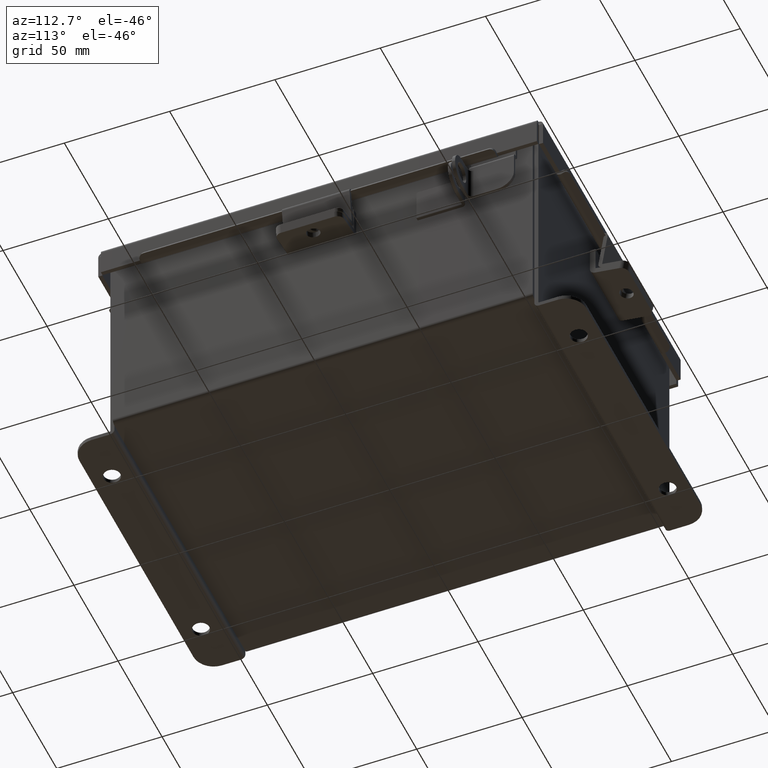
[diagram: clean part render]
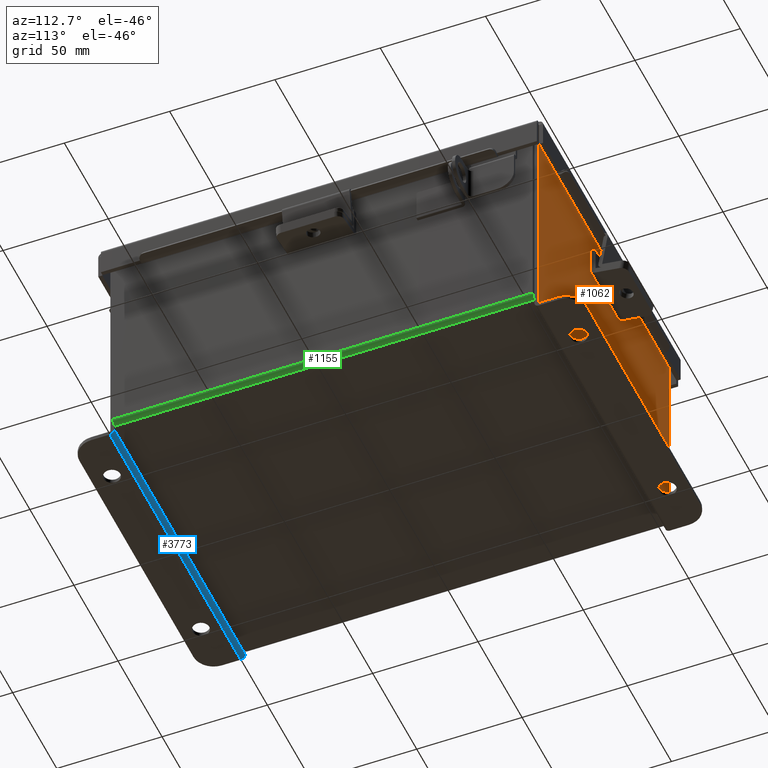
[diagram: same view with three faces highlighted in distinct colors, each labeled with its STEP entity id]
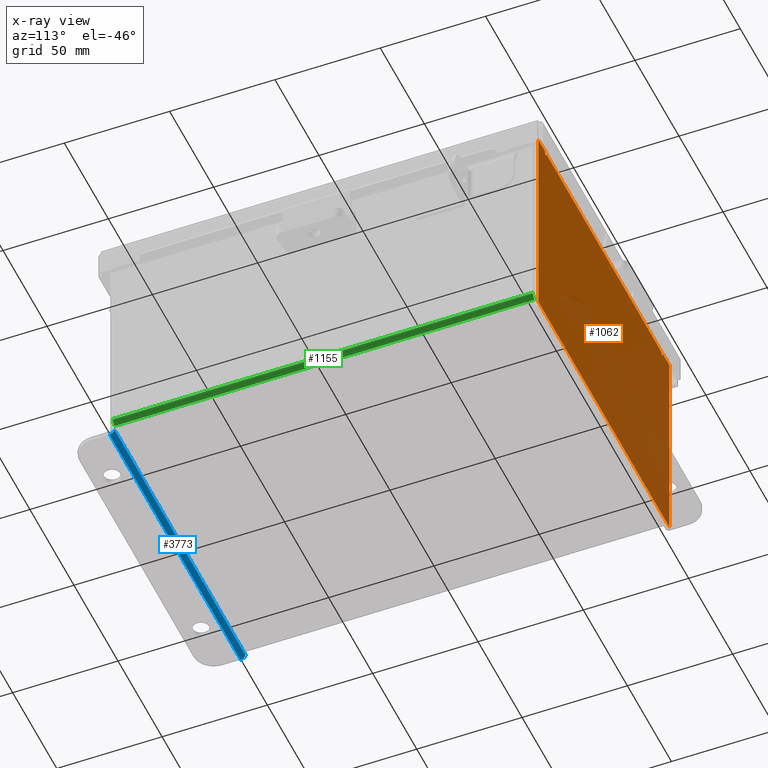
[diagram: x-ray of the same camera — body ghosted, the three highlighted faces saturated]
A machine part, auxiliary view with three faces highlighted in distinct colors.
The next image is the same camera in x-ray (body ghosted, the three faces saturated) — at least one of them is partly hidden behind the body in this view.
Their STEP definitions:

[orange] entity #1062 — the highlighted planar face has unit normal (0, -1, 0).
#41 = CARTESIAN_POINT ( 'NONE',  ( 2.925299999999999100, 0.0000000000000000000, -2.099299999999999100 ) ) ;
#64 = CARTESIAN_POINT ( 'NONE',  ( -2.600975000000000900, 0.0000000000000000000, 1.874950000000000100 ) ) ;
#344 = VECTOR ( 'NONE', #9688, 39.37007874015748100 ) ;
#378 = AXIS2_PLACEMENT_3D ( 'NONE', #64, #8385, #1260 ) ;
#532 = VECTOR ( 'NONE', #10371, 39.37007874015748100 ) ;
#679 = ORIENTED_EDGE ( 'NONE', *, *, #1486, .T. ) ;
#1062 = ADVANCED_FACE ( 'NONE', ( #1191 ), #8965, .F. ) ;
#1116 = CARTESIAN_POINT ( 'NONE',  ( -2.582300000000000900, 1.092739197465705300E-015, 1.912300000000000300 ) ) ;
#1191 = FACE_OUTER_BOUND ( 'NONE', #11539, .T. ) ;
#1260 = DIRECTION ( 'NONE',  ( 0.0000000000000000000, 0.0000000000000000000, -1.000000000000000000 ) ) ;
#1319 = EDGE_CURVE ( 'NONE', #3755, #7990, #4164, .T. ) ;
#1486 = EDGE_CURVE ( 'NONE', #1527, #3192, #14540, .T. ) ;
#1527 = VERTEX_POINT ( 'NONE', #7560 ) ;
#1622 = EDGE_CURVE ( 'NONE', #10123, #14582, #10312, .T. ) ;
#1634 = VERTEX_POINT ( 'NONE', #4939 ) ;
#1823 = CIRCLE ( 'NONE', #2162, 0.01867500000000003900 ) ;
#2162 = AXIS2_PLACEMENT_3D ( 'NONE', #6652, #14937, #7858 ) ;
#2306 = CARTESIAN_POINT ( 'NONE',  ( -2.619650000000000900, 0.0000000000000000000, 1.874950000000000100 ) ) ;
#2425 = LINE ( 'NONE', #12638, #8379 ) ;
#2628 = ORIENTED_EDGE ( 'NONE', *, *, #3528, .F. ) ;
#2701 = ORIENTED_EDGE ( 'NONE', *, *, #13442, .F. ) ;
#2752 = ORIENTED_EDGE ( 'NONE', *, *, #15109, .T. ) ;
#3192 = VERTEX_POINT ( 'NONE', #7742 ) ;
#3212 = VECTOR ( 'NONE', #6079, 39.37007874015748100 ) ;
#3295 = EDGE_CURVE ( 'NONE', #1634, #14582, #2425, .T. ) ;
#3528 = EDGE_CURVE ( 'NONE', #3755, #6779, #5428, .T. ) ;
#3601 = CARTESIAN_POINT ( 'NONE',  ( -2.582300000000000900, 0.0000000000000000000, 0.0000000000000000000 ) ) ;
#3755 = VERTEX_POINT ( 'NONE', #10009 ) ;
#3889 = LINE ( 'NONE', #8489, #344 ) ;
#4164 = LINE ( 'NONE', #1116, #6580 ) ;
#4190 = CARTESIAN_POINT ( 'NONE',  ( 0.0000000000000000000, 0.0000000000000000000, 0.0000000000000000000 ) ) ;
#4243 = DIRECTION ( 'NONE',  ( 0.0000000000000000000, -0.0000000000000000000, -1.000000000000000000 ) ) ;
#4421 = EDGE_CURVE ( 'NONE', #6779, #13889, #10407, .T. ) ;
#4939 = CARTESIAN_POINT ( 'NONE',  ( 2.925299999999999100, 0.0000000000000000000, 1.925300000000000900 ) ) ;
#5096 = VECTOR ( 'NONE', #6305, 39.37007874015748100 ) ;
#5337 = EDGE_CURVE ( 'NONE', #13889, #3192, #10208, .T. ) ;
#5428 = LINE ( 'NONE', #3601, #7827 ) ;
#5561 = DIRECTION ( 'NONE',  ( 0.0000000000000000000, 0.0000000000000000000, -1.000000000000000000 ) ) ;
#5580 = DIRECTION ( 'NONE',  ( 0.0000000000000000000, 0.0000000000000000000, 1.000000000000000000 ) ) ;
#5759 = ORIENTED_EDGE ( 'NONE', *, *, #15330, .T. ) ;
#5800 = EDGE_CURVE ( 'NONE', #9919, #13696, #7390, .T. ) ;
#6042 = ORIENTED_EDGE ( 'NONE', *, *, #3295, .T. ) ;
#6079 = DIRECTION ( 'NONE',  ( 1.000000000000000000, 8.208677865577646300E-017, -0.0000000000000000000 ) ) ;
#6163 = CARTESIAN_POINT ( 'NONE',  ( -2.582300000000000900, 0.0000000000000000000, 1.874950000000000100 ) ) ;
#6305 = DIRECTION ( 'NONE',  ( 1.000000000000000000, 0.0000000000000000000, 0.0000000000000000000 ) ) ;
#6580 = VECTOR ( 'NONE', #10637, 39.37007874015748100 ) ;
#6652 = CARTESIAN_POINT ( 'NONE',  ( 2.600974999999998700, 0.0000000000000000000, 1.874950000000000100 ) ) ;
#6777 = CARTESIAN_POINT ( 'NONE',  ( 2.619649999999999100, 0.0000000000000000000, 1.874950000000000100 ) ) ;
#6779 = VERTEX_POINT ( 'NONE', #6163 ) ;
#6851 = LINE ( 'NONE', #12713, #532 ) ;
#7128 = CARTESIAN_POINT ( 'NONE',  ( 2.619649999999999100, 0.0000000000000000000, 1.925300000000000900 ) ) ;
#7390 = LINE ( 'NONE', #8771, #12930 ) ;
#7560 = CARTESIAN_POINT ( 'NONE',  ( -2.925300000000001300, 0.0000000000000000000, 1.925300000000000900 ) ) ;
#7742 = CARTESIAN_POINT ( 'NONE',  ( -2.619650000000000900, 0.0000000000000000000, 1.925300000000000900 ) ) ;
#7827 = VECTOR ( 'NONE', #10791, 39.37007874015748100 ) ;
#7858 = DIRECTION ( 'NONE',  ( 0.0000000000000000000, 0.0000000000000000000, -1.000000000000000000 ) ) ;
#7990 = VERTEX_POINT ( 'NONE', #11921 ) ;
#8379 = VECTOR ( 'NONE', #5561, 39.37007874015748100 ) ;
#8385 = DIRECTION ( 'NONE',  ( -0.0000000000000000000, 1.000000000000000000, -0.0000000000000000000 ) ) ;
#8489 = CARTESIAN_POINT ( 'NONE',  ( -2.925300000000001300, 0.0000000000000000000, 1.925300000000000900 ) ) ;
#8585 = LINE ( 'NONE', #8911, #11744 ) ;
#8771 = CARTESIAN_POINT ( 'NONE',  ( 2.619649999999978700, 0.0000000000000000000, -2.841121913410833900E-014 ) ) ;
#8911 = CARTESIAN_POINT ( 'NONE',  ( 2.582299999999998700, 0.0000000000000000000, 0.0000000000000000000 ) ) ;
#8965 = PLANE ( 'NONE',  #9527 ) ;
#9527 = AXIS2_PLACEMENT_3D ( 'NONE', #4190, #11373, #4243 ) ;
#9688 = DIRECTION ( 'NONE',  ( 1.000000000000000000, 0.0000000000000000000, 0.0000000000000000000 ) ) ;
#9919 = VERTEX_POINT ( 'NONE', #7128 ) ;
#10009 = CARTESIAN_POINT ( 'NONE',  ( -2.582300000000000900, 1.092739197465705300E-015, 1.912300000000000300 ) ) ;
#10123 = VERTEX_POINT ( 'NONE', #12152 ) ;
#10208 = LINE ( 'NONE', #15093, #12216 ) ;
#10260 = ORIENTED_EDGE ( 'NONE', *, *, #1319, .T. ) ;
#10312 = LINE ( 'NONE', #14374, #3212 ) ;
#10371 = DIRECTION ( 'NONE',  ( -0.0000000000000000000, -0.0000000000000000000, 1.000000000000000000 ) ) ;
#10407 = CIRCLE ( 'NONE', #378, 0.01867500000000003900 ) ;
#10637 = DIRECTION ( 'NONE',  ( 1.000000000000000000, 0.0000000000000000000, 0.0000000000000000000 ) ) ;
#10791 = DIRECTION ( 'NONE',  ( 0.0000000000000000000, 0.0000000000000000000, -1.000000000000000000 ) ) ;
#11000 = EDGE_CURVE ( 'NONE', #13696, #15097, #1823, .T. ) ;
#11373 = DIRECTION ( 'NONE',  ( 0.0000000000000000000, -1.000000000000000000, 0.0000000000000000000 ) ) ;
#11413 = ORIENTED_EDGE ( 'NONE', *, *, #4421, .F. ) ;
#11539 = EDGE_LOOP ( 'NONE', ( #13576, #11413, #2628, #10260, #2701, #11940, #13409, #2752, #6042, #12199, #5759, #679 ) ) ;
#11744 = VECTOR ( 'NONE', #14804, 39.37007874015748100 ) ;
#11921 = CARTESIAN_POINT ( 'NONE',  ( 2.582299999999998700, 0.0000000000000000000, 1.912300000000000300 ) ) ;
#11940 = ORIENTED_EDGE ( 'NONE', *, *, #11000, .F. ) ;
#12152 = CARTESIAN_POINT ( 'NONE',  ( -2.925300000000000500, -5.463695987328526400E-016, -2.099299999999999100 ) ) ;
#12199 = ORIENTED_EDGE ( 'NONE', *, *, #1622, .F. ) ;
#12215 = CARTESIAN_POINT ( 'NONE',  ( -2.925300000000001300, 0.0000000000000000000, 1.925300000000000900 ) ) ;
#12216 = VECTOR ( 'NONE', #5580, 39.37007874015748100 ) ;
#12340 = DIRECTION ( 'NONE',  ( -1.085143195099989400E-014, 0.0000000000000000000, -1.000000000000000000 ) ) ;
#12638 = CARTESIAN_POINT ( 'NONE',  ( 2.925299999999999100, 0.0000000000000000000, 1.925300000000000900 ) ) ;
#12713 = CARTESIAN_POINT ( 'NONE',  ( -2.925300000000001300, 0.0000000000000000000, 1.925300000000000900 ) ) ;
#12930 = VECTOR ( 'NONE', #12340, 39.37007874015748100 ) ;
#13183 = CARTESIAN_POINT ( 'NONE',  ( 2.582299999999998700, 0.0000000000000000000, 1.874950000000000100 ) ) ;
#13409 = ORIENTED_EDGE ( 'NONE', *, *, #5800, .F. ) ;
#13442 = EDGE_CURVE ( 'NONE', #15097, #7990, #8585, .T. ) ;
#13576 = ORIENTED_EDGE ( 'NONE', *, *, #5337, .F. ) ;
#13696 = VERTEX_POINT ( 'NONE', #6777 ) ;
#13889 = VERTEX_POINT ( 'NONE', #2306 ) ;
#14374 = CARTESIAN_POINT ( 'NONE',  ( -2.925300000000001300, -5.463695987328526400E-016, -2.099299999999999100 ) ) ;
#14540 = LINE ( 'NONE', #12215, #5096 ) ;
#14582 = VERTEX_POINT ( 'NONE', #41 ) ;
#14804 = DIRECTION ( 'NONE',  ( 0.0000000000000000000, 0.0000000000000000000, 1.000000000000000000 ) ) ;
#14937 = DIRECTION ( 'NONE',  ( -0.0000000000000000000, 1.000000000000000000, -0.0000000000000000000 ) ) ;
#15093 = CARTESIAN_POINT ( 'NONE',  ( -2.619650000000000900, 0.0000000000000000000, 0.0000000000000000000 ) ) ;
#15097 = VERTEX_POINT ( 'NONE', #13183 ) ;
#15109 = EDGE_CURVE ( 'NONE', #9919, #1634, #3889, .T. ) ;
#15330 = EDGE_CURVE ( 'NONE', #10123, #1527, #6851, .T. ) ;

[blue] entity #3773 — the highlighted cylindrical surface (edge-blend (fillet) strip) has radius 2.2276 mm, axis along (1, 0, -0).
#176 = AXIS2_PLACEMENT_3D ( 'NONE', #4070, #7675, #1687 ) ;
#191 = VERTEX_POINT ( 'NONE', #8148 ) ;
#514 = ORIENTED_EDGE ( 'NONE', *, *, #6588, .F. ) ;
#744 = EDGE_CURVE ( 'NONE', #191, #1932, #14745, .T. ) ;
#971 = CARTESIAN_POINT ( 'NONE',  ( -2.925300000000000500, -0.07470000000000015500, -2.099299999999999100 ) ) ;
#1050 = AXIS2_PLACEMENT_3D ( 'NONE', #12575, #5503, #13767 ) ;
#1069 = CARTESIAN_POINT ( 'NONE',  ( 2.925299999999999600, -0.07469999999999579800, -2.099299999999996800 ) ) ;
#1687 = DIRECTION ( 'NONE',  ( 0.0000000000000000000, -3.334014886794506100E-015, -1.000000000000000000 ) ) ;
#1932 = VERTEX_POINT ( 'NONE', #10307 ) ;
#2252 = EDGE_LOOP ( 'NONE', ( #6631, #9929, #2307, #514 ) ) ;
#2307 = ORIENTED_EDGE ( 'NONE', *, *, #14461, .T. ) ;
#3012 = LINE ( 'NONE', #971, #14886 ) ;
#3063 = VERTEX_POINT ( 'NONE', #1069 ) ;
#3452 = CARTESIAN_POINT ( 'NONE',  ( 2.925299999999999600, 0.01300000000000393200, -2.099299999999999100 ) ) ;
#3773 = ADVANCED_FACE ( 'NONE', ( #15030 ), #8368, .T. ) ;
#4070 = CARTESIAN_POINT ( 'NONE',  ( -2.925300000000000500, 0.01299999999999956100, -2.099299999999999100 ) ) ;
#4662 = DIRECTION ( 'NONE',  ( 0.0000000000000000000, 0.0000000000000000000, 1.000000000000000000 ) ) ;
#5032 = LINE ( 'NONE', #6959, #11356 ) ;
#5306 = CIRCLE ( 'NONE', #6097, 0.08770000000000000000 ) ;
#5503 = DIRECTION ( 'NONE',  ( -1.000000000000000000, -4.910036603141682400E-031, 0.0000000000000000000 ) ) ;
#6097 = AXIS2_PLACEMENT_3D ( 'NONE', #3452, #11772, #4662 ) ;
#6588 = EDGE_CURVE ( 'NONE', #3063, #11845, #5306, .T. ) ;
#6631 = ORIENTED_EDGE ( 'NONE', *, *, #7825, .F. ) ;
#6959 = CARTESIAN_POINT ( 'NONE',  ( 2.925300000000004000, 0.01300000000000502500, -2.186999999999998900 ) ) ;
#7675 = DIRECTION ( 'NONE',  ( -1.000000000000000000, -4.910036603141682400E-031, 0.0000000000000000000 ) ) ;
#7825 = EDGE_CURVE ( 'NONE', #1932, #3063, #3012, .T. ) ;
#8148 = CARTESIAN_POINT ( 'NONE',  ( -2.925299999999995600, 0.01300000000000065300, -2.186999999999998900 ) ) ;
#8368 = CYLINDRICAL_SURFACE ( 'NONE', #176, 0.08770000000000000000 ) ;
#9179 = DIRECTION ( 'NONE',  ( 1.000000000000000000, 4.910036603141682400E-031, -0.0000000000000000000 ) ) ;
#9506 = CARTESIAN_POINT ( 'NONE',  ( 2.925300000000004000, 0.01300000000000393200, -2.186999999999998900 ) ) ;
#9929 = ORIENTED_EDGE ( 'NONE', *, *, #744, .F. ) ;
#10307 = CARTESIAN_POINT ( 'NONE',  ( -2.925300000000000000, -0.07470000000000015500, -2.099299999999999100 ) ) ;
#11356 = VECTOR ( 'NONE', #15244, 39.37007874015748100 ) ;
#11772 = DIRECTION ( 'NONE',  ( 1.000000000000000000, 4.910036603141682400E-031, -0.0000000000000000000 ) ) ;
#11845 = VERTEX_POINT ( 'NONE', #9506 ) ;
#12575 = CARTESIAN_POINT ( 'NONE',  ( -2.925300000000000000, 0.01299999999999956100, -2.099299999999999100 ) ) ;
#13767 = DIRECTION ( 'NONE',  ( 0.0000000000000000000, 0.0000000000000000000, 1.000000000000000000 ) ) ;
#14461 = EDGE_CURVE ( 'NONE', #191, #11845, #5032, .T. ) ;
#14745 = CIRCLE ( 'NONE', #1050, 0.08770000000000000000 ) ;
#14886 = VECTOR ( 'NONE', #9179, 39.37007874015748100 ) ;
#15030 = FACE_OUTER_BOUND ( 'NONE', #2252, .T. ) ;
#15244 = DIRECTION ( 'NONE',  ( 1.000000000000000000, 4.910036603141682400E-031, -0.0000000000000000000 ) ) ;

[green] entity #1155 — the highlighted cylindrical surface (edge-blend (fillet) strip) has radius 2.2276 mm, axis along (0, 1, 0).
#456 = AXIS2_PLACEMENT_3D ( 'NONE', #3190, #10382, #13870 ) ;
#1155 = ADVANCED_FACE ( 'NONE', ( #14732 ), #14369, .T. ) ;
#2173 = DIRECTION ( 'NONE',  ( 0.0000000000000000000, 1.000000000000000000, 0.0000000000000000000 ) ) ;
#3190 = CARTESIAN_POINT ( 'NONE',  ( 2.912300000000000600, 3.925300000000000500, 0.01300000000000015000 ) ) ;
#3372 = VERTEX_POINT ( 'NONE', #11616 ) ;
#3690 = VECTOR ( 'NONE', #11703, 39.37007874015748100 ) ;
#4494 = VERTEX_POINT ( 'NONE', #6096 ) ;
#4624 = DIRECTION ( 'NONE',  ( -0.0000000000000000000, -1.000000000000000000, -0.0000000000000000000 ) ) ;
#4711 = VERTEX_POINT ( 'NONE', #11654 ) ;
#4804 = ORIENTED_EDGE ( 'NONE', *, *, #7824, .F. ) ;
#5785 = CARTESIAN_POINT ( 'NONE',  ( 3.000000000000000900, 3.925300000000000500, 0.01299999999999984300 ) ) ;
#6096 = CARTESIAN_POINT ( 'NONE',  ( 2.912300000000000600, 3.925300000000000500, -0.07469999999999994700 ) ) ;
#6168 = LINE ( 'NONE', #13762, #8579 ) ;
#6860 = LINE ( 'NONE', #15205, #3690 ) ;
#7501 = EDGE_LOOP ( 'NONE', ( #8094, #4804, #8191, #15144 ) ) ;
#7824 = EDGE_CURVE ( 'NONE', #14483, #4494, #12112, .T. ) ;
#8094 = ORIENTED_EDGE ( 'NONE', *, *, #9823, .F. ) ;
#8191 = ORIENTED_EDGE ( 'NONE', *, *, #8364, .T. ) ;
#8364 = EDGE_CURVE ( 'NONE', #14483, #3372, #6168, .T. ) ;
#8579 = VECTOR ( 'NONE', #11456, 39.37007874015748100 ) ;
#9284 = CARTESIAN_POINT ( 'NONE',  ( 2.912300000000000600, 3.925300000000000500, 0.01300000000000015000 ) ) ;
#9699 = AXIS2_PLACEMENT_3D ( 'NONE', #9284, #2173, #10498 ) ;
#9823 = EDGE_CURVE ( 'NONE', #4494, #4711, #6860, .T. ) ;
#10382 = DIRECTION ( 'NONE',  ( 0.0000000000000000000, 1.000000000000000000, 0.0000000000000000000 ) ) ;
#10498 = DIRECTION ( 'NONE',  ( 0.0000000000000000000, 0.0000000000000000000, 1.000000000000000000 ) ) ;
#11190 = EDGE_CURVE ( 'NONE', #4711, #3372, #15340, .T. ) ;
#11456 = DIRECTION ( 'NONE',  ( -0.0000000000000000000, -1.000000000000000000, -0.0000000000000000000 ) ) ;
#11616 = CARTESIAN_POINT ( 'NONE',  ( 3.000000000000000900, -3.925299999999999100, 0.01299999999999984300 ) ) ;
#11654 = CARTESIAN_POINT ( 'NONE',  ( 2.912300000000000600, -3.925299999999998700, -0.07470000000000000300 ) ) ;
#11703 = DIRECTION ( 'NONE',  ( -0.0000000000000000000, -1.000000000000000000, -0.0000000000000000000 ) ) ;
#11738 = CARTESIAN_POINT ( 'NONE',  ( 2.912300000000000600, -3.925299999999999100, 0.01300000000000015000 ) ) ;
#12112 = CIRCLE ( 'NONE', #9699, 0.08770000000000009700 ) ;
#12905 = DIRECTION ( 'NONE',  ( 0.0000000000000000000, 0.0000000000000000000, 1.000000000000000000 ) ) ;
#13494 = AXIS2_PLACEMENT_3D ( 'NONE', #11738, #4624, #12905 ) ;
#13762 = CARTESIAN_POINT ( 'NONE',  ( 3.000000000000000900, -3.925299999999999100, 0.01299999999999984300 ) ) ;
#13870 = DIRECTION ( 'NONE',  ( 1.000000000000000000, 0.0000000000000000000, -3.553037762569317100E-015 ) ) ;
#14369 = CYLINDRICAL_SURFACE ( 'NONE', #456, 0.08770000000000026400 ) ;
#14483 = VERTEX_POINT ( 'NONE', #5785 ) ;
#14732 = FACE_OUTER_BOUND ( 'NONE', #7501, .T. ) ;
#15144 = ORIENTED_EDGE ( 'NONE', *, *, #11190, .F. ) ;
#15205 = CARTESIAN_POINT ( 'NONE',  ( 2.912300000000000600, 3.925300000000000500, -0.07469999999999994700 ) ) ;
#15340 = CIRCLE ( 'NONE', #13494, 0.08770000000000009700 ) ;